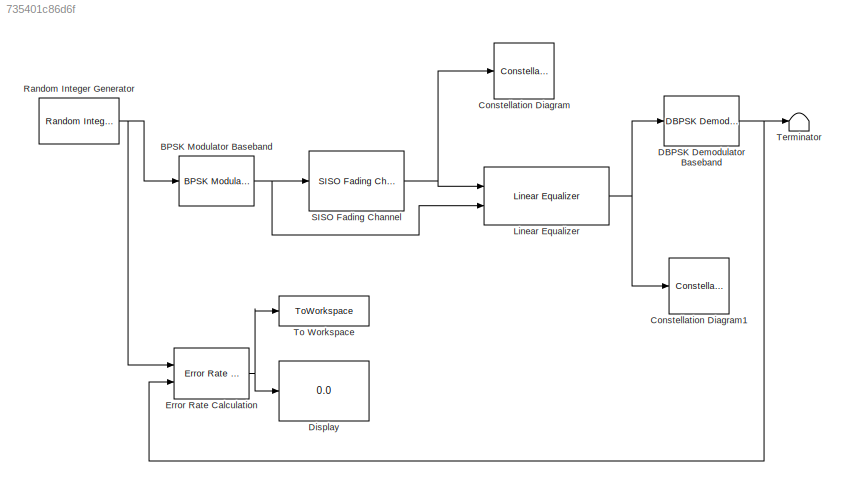
MODEL slx_735401c86d6f
KIND model
CONFIG AbsTol = auto
CONFIG EnableMultiTasking = off
CONFIG FixedStep = auto
CONFIG MaxStep = auto
CONFIG MinStep = auto
CONFIG RelTol = 1e-3
CONFIG SampleTimeConstraint = Unconstrained
CONFIG SolverName = VariableStepAuto
CONFIG StartTime = 0.0
CONFIG StopTime = 10.0
BLOCK [Reference] BPSK Modulator Baseband  REF=commdigbbndpm3/BPSK
Modulator
Baseband
  Ports = [1, 1]
  SourceBlock = commdigbbndpm3/BPSK\nModulator\nBaseband
  SourceProductBaseCode = CM
  SourceType = BPSK Modulator Baseband
BLOCK [ConstellationDiagram] Constellation Diagram
  GraphicalSettings = {"Style":{"BackgroundColor":[0.1568627450980392,0.1568627450980392,0.1568627450980392],"AxesColor":[0,0,0],"LabelsColor":[0.6862745098039216,0.6862745098039216,0.6862745098039216],"LineStyle":["-","NONE"],"LineColor":[[1,1,0.06666666666666667],[1,0,0]],"LineWidth":[1,1],"Marker":[".","+"],"IsRefLine":[false,true],"FontSize":"small"},"ReferenceConstellation":[{"RefConstellationValue":"[0.7071+0.707...<+144ch>
  Ports = [1]
  ScopeFrameLocation = window
  ShowTrajectory = on
  WasSavedAsWebScope = on
  WindowPosition = [382.000000,84.000000,600.000000,600.000000,]
BLOCK [ConstellationDiagram] Constellation Diagram1
  EnableMeasurements = on
  GraphicalSettings = {"Style":{"BackgroundColor":[0.1568627450980392,0.1568627450980392,0.1568627450980392],"AxesColor":[0,0,0],"LabelsColor":[0.6862745098039216,0.6862745098039216,0.6862745098039216],"LineStyle":["NONE"],"LineColor":[[1,0,0]],"LineWidth":[1],"Marker":["+"],"IsRefLine":[true],"FontSize":"small"},"ReferenceConstellation":[{"RefConstellationValue":"[0.7071+0.7071i  -0.7071+0.7071i  -0.7071-0.7071i 0.707...<+102ch>
  Ports = [1]
  ReferenceConstellation = [0.70711+0.70711i        -0.70711+0.70711i        -0.70711-0.70711i         0.70711-0.70711i]
  ScopeFrameLocation = window
  ShowTrajectory = on
  WasSavedAsWebScope = on
  WindowPosition = [146.000000,105.000000,600.000000,600.000000,]
  XLimits = [-1.46,1.46]
  YLimits = [-1.38,1.38]
BLOCK [Reference] DBPSK Demodulator Baseband  REF=commdigbbndpm3/DBPSK
Demodulator
Baseband
  Ports = [1, 1]
  SourceBlock = commdigbbndpm3/DBPSK\nDemodulator\nBaseband
  SourceProductBaseCode = CM
  SourceType = DBPSK Demodulator Baseband
BLOCK [Display] Display
  Decimation = 1
  Ports = [1]
BLOCK [Reference] Error Rate Calculation  REF=commsink2/Error Rate
Calculation
  Ports = [2, 1]
  SourceBlock = commsink2/Error Rate\nCalculation
  SourceProductBaseCode = CM
  SourceType = Error Rate Calculation
BLOCK [Reference] Linear Equalizer  REF=commeq3/Linear Equalizer
  Ports = [2, 1]
  SourceBlock = commeq3/Linear Equalizer
  SourceProductBaseCode = CM
  SourceType = Linear Equalizer
BLOCK [Reference] Random Integer Generator  REF=commrandsrc3/Random Integer
Generator
  Ports = [0, 1]
  SourceBlock = commrandsrc3/Random Integer\nGenerator
  SourceProductBaseCode = CM
  SourceType = Random Integer Generator
BLOCK [Reference] SISO Fading Channel  REF=commchan3/SISO Fading Channel
  Ports = [1, 1]
  SourceBlock = commchan3/SISO Fading Channel
  SourceProductBaseCode = CM
  SourceType = SISO Fading Channel
BLOCK [Terminator] Terminator
BLOCK [ToWorkspace] To Workspace
  FixptAsFi = on
  MaxDataPoints = inf
  Ports = [1]
  SampleTime = -1
  SaveFormat = Timeseries
  VariableName = BER
NET BPSK Modulator Baseband:1 -> Linear Equalizer:2, SISO Fading Channel:1
NET DBPSK Demodulator Baseband:1 -> Error Rate Calculation:2, Terminator:1
NET Error Rate Calculation:1 -> Display:1, To Workspace:1
NET Linear Equalizer:1 -> Constellation Diagram1:1, DBPSK Demodulator Baseband:1
NET Random Integer Generator:1 -> BPSK Modulator Baseband:1, Error Rate Calculation:1
NET SISO Fading Channel:1 -> Constellation Diagram:1, Linear Equalizer:1
note: NET lines group one-source signal fan-out (src -> all destinations, sorted); 1:1 wires keep LINE
